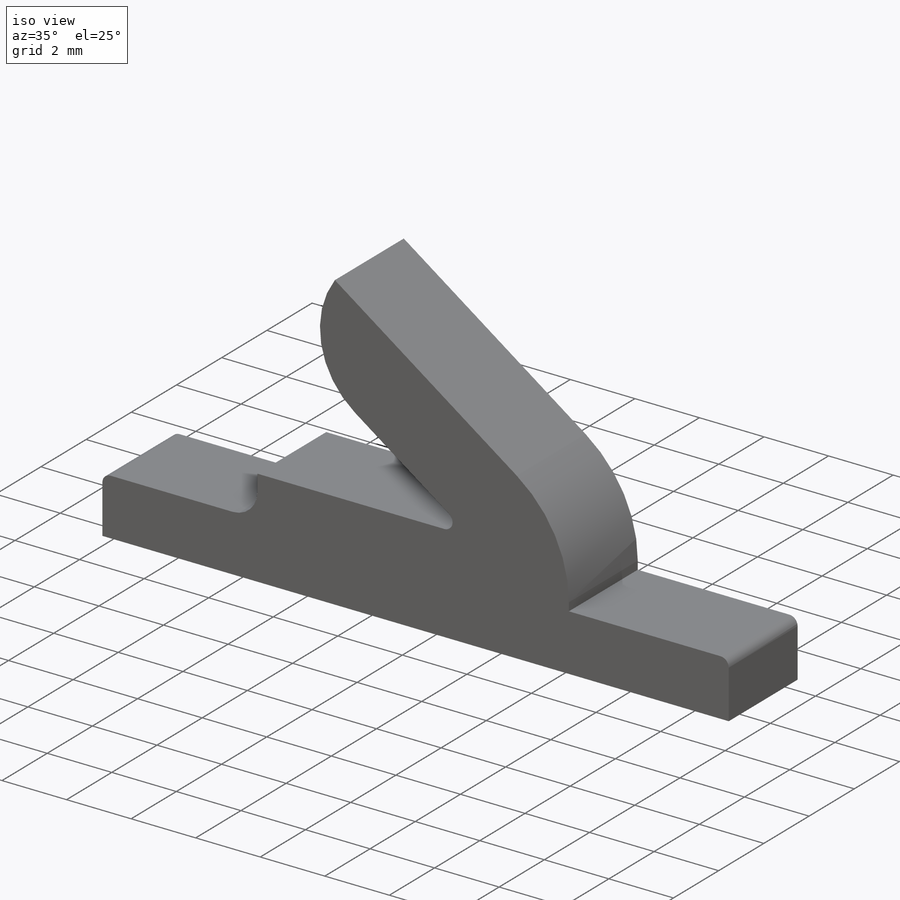
[diagram: iso view]
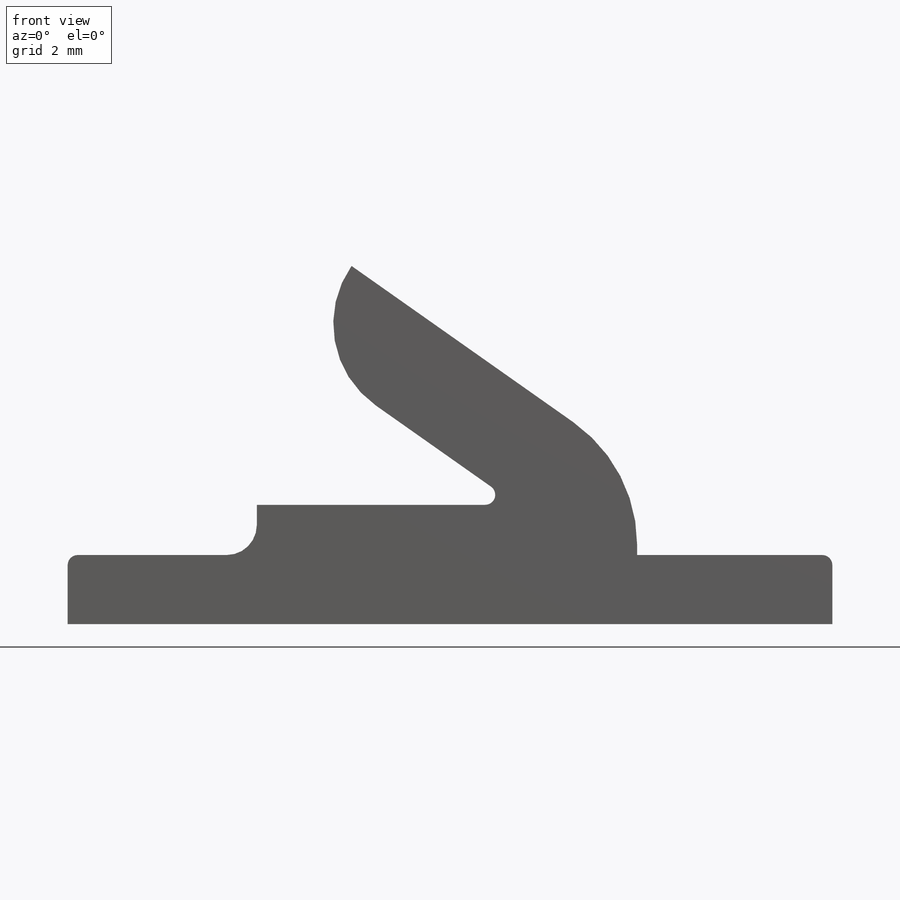
[diagram: front view]
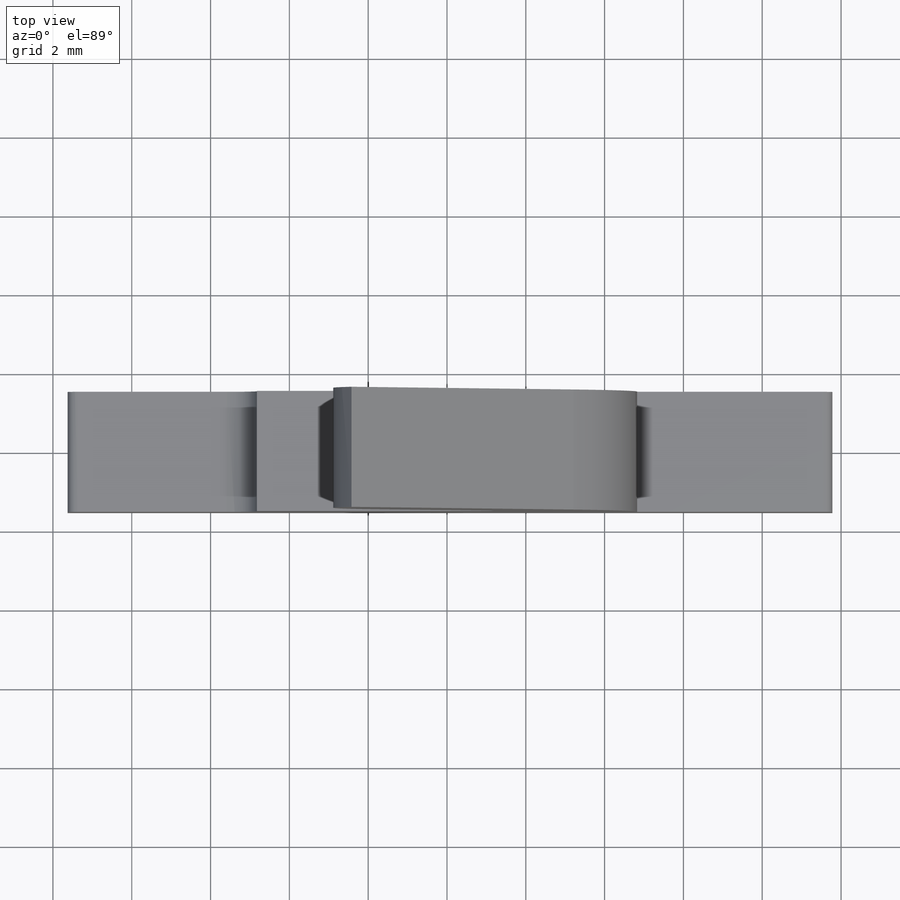
[diagram: top view]
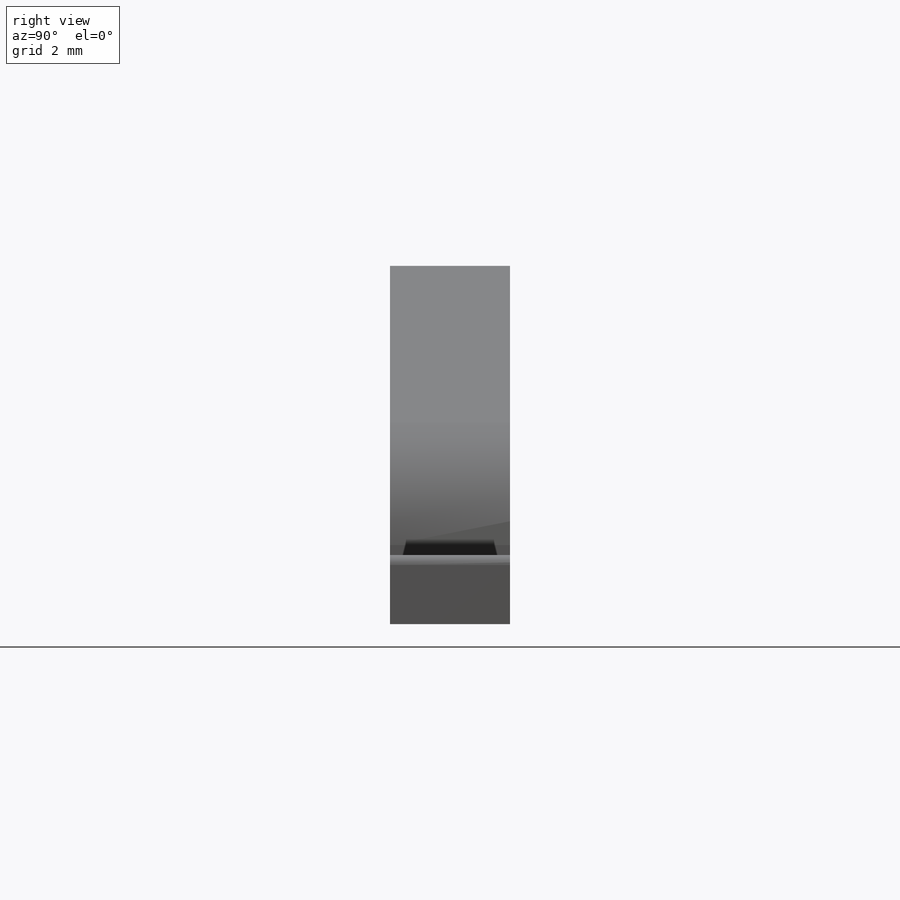
[diagram: right view]
SOLIDWORKS PART (.sldprt)
format: sldprt  version: not decoded by parser v0  size: 235,520 bytes
history: native  units: mm
features: sketch x2, fillet x2, material x1, extrude x1 (+13 scaffold rows collapsed)
feature tree (19):
  scaffold x13  (default folders/planes/origin — collapsed)
  material  "ABS"
  sketch  "Sketch1"  dims[c1.D4=0.762mm c1.D1=1.9304mm c1.D2=5.1435mm c1.D3=~29.219691mm c1.D5=~26.679691mm c2.D3=5.08mm c2.D5=3.81mm c2.D6=5.715mm c3.D3=3.8862mm]
  sketch  "Sketch3"  dims[D5=0.254mm D8=0.254mm D9=3.81mm D1=2.54mm D2=9.779mm D3=9.6266mm D4=1.7526mm D6=4.826mm D7=4.826mm]
  extrude  "Boss-Extrude1"  Depth=3.048mm
  fillet  "Fillet1"  Radius=2.54mm
  fillet  "Fillet2"  Radius=0.762mm
decode coverage: 5 of 5 modeling features carry decoded parameters
note: ~ marks probable driven/reference dimensions
note: suppression state not decoded; provenance and decode notes live in map.json
